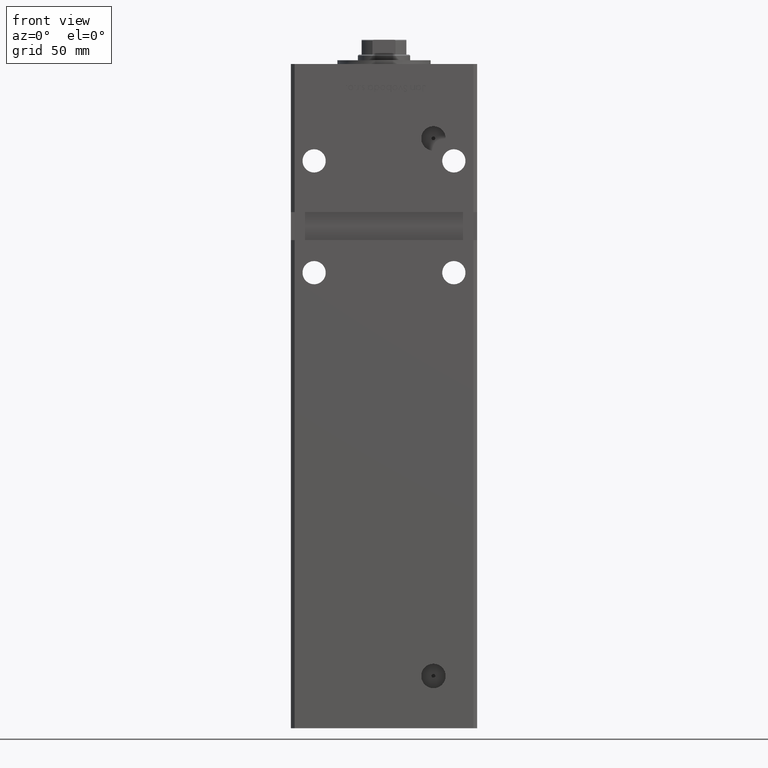
[diagram: clean part render]
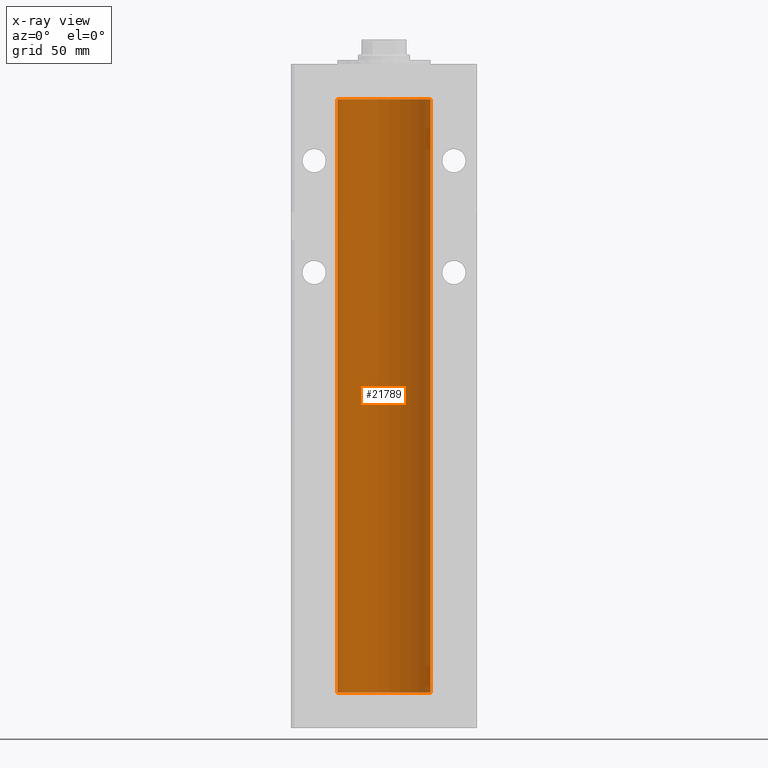
[diagram: x-ray — body ghosted, one internal face saturated and labeled with its STEP entity id]
A machine part, front view, then the same camera in x-ray: the body is ghosted and one INTERNAL B-rep face — a face not visible from any outside direction — is saturated and labeled: STEP entity #21789.
In plain terms, the highlighted cylindrical surface (partial cylindrical patch) has radius 25 mm, axis along (-0, -0, -1).
Its self-contained STEP definition (entity closure, byte-faithful):
#387 = CIRCLE ( 'NONE', #45842, 25.00000000000000000 ) ;
#1282 = DIRECTION ( 'NONE',  ( 1.000000000000000000, 0.000000000000000000, 0.000000000000000000 ) ) ;
#2085 = CIRCLE ( 'NONE', #6348, 25.00000000000000000 ) ;
#3103 = VERTEX_POINT ( 'NONE', #39651 ) ;
#5328 = CARTESIAN_POINT ( 'NONE',  ( 0.000000000000000000, 0.000000000000000000, 0.000000000000000000 ) ) ;
#6348 = AXIS2_PLACEMENT_3D ( 'NONE', #27456, #14842, #22897 ) ;
#7158 = CARTESIAN_POINT ( 'NONE',  ( -25.00000000000000000, 0.000000000000000000, 0.000000000000000000 ) ) ;
#8181 = LINE ( 'NONE', #24549, #21159 ) ;
#8368 = CARTESIAN_POINT ( 'NONE',  ( 25.00000000000000000, 3.061616997868383043E-15, 0.000000000000000000 ) ) ;
#11287 = LINE ( 'NONE', #15841, #34707 ) ;
#11823 = EDGE_CURVE ( 'NONE', #3103, #28833, #2085, .T. ) ;
#12466 = EDGE_CURVE ( 'NONE', #3103, #41007, #11287, .T. ) ;
#13126 = EDGE_CURVE ( 'NONE', #41007, #34138, #387, .T. ) ;
#14842 = DIRECTION ( 'NONE',  ( -0.000000000000000000, 0.000000000000000000, 1.000000000000000000 ) ) ;
#15841 = CARTESIAN_POINT ( 'NONE',  ( 25.00000000000000000, 3.061616997868383043E-15, 318.5000000000000000 ) ) ;
#19867 = EDGE_CURVE ( 'NONE', #28833, #34138, #8181, .T. ) ;
#20404 = AXIS2_PLACEMENT_3D ( 'NONE', #46518, #41691, #29573 ) ;
#21159 = VECTOR ( 'NONE', #40952, 1000.000000000000000 ) ;
#21789 = ADVANCED_FACE ( 'NONE', ( #37914 ), #34686, .F. ) ;
#22897 = DIRECTION ( 'NONE',  ( 1.000000000000000000, 0.000000000000000000, 0.000000000000000000 ) ) ;
#24549 = CARTESIAN_POINT ( 'NONE',  ( -25.00000000000000000, 0.000000000000000000, 318.5000000000000000 ) ) ;
#27456 = CARTESIAN_POINT ( 'NONE',  ( 0.000000000000000000, 0.000000000000000000, 318.5000000000000000 ) ) ;
#28833 = VERTEX_POINT ( 'NONE', #35650 ) ;
#29354 = EDGE_LOOP ( 'NONE', ( #35601, #50693, #34726, #39929 ) ) ;
#29573 = DIRECTION ( 'NONE',  ( -1.000000000000000000, 0.000000000000000000, 0.000000000000000000 ) ) ;
#31947 = DIRECTION ( 'NONE',  ( -0.000000000000000000, -0.000000000000000000, -1.000000000000000000 ) ) ;
#34138 = VERTEX_POINT ( 'NONE', #7158 ) ;
#34686 = CYLINDRICAL_SURFACE ( 'NONE', #20404, 25.00000000000000000 ) ;
#34707 = VECTOR ( 'NONE', #31947, 1000.000000000000000 ) ;
#34726 = ORIENTED_EDGE ( 'NONE', *, *, #19867, .T. ) ;
#35601 = ORIENTED_EDGE ( 'NONE', *, *, #12466, .F. ) ;
#35650 = CARTESIAN_POINT ( 'NONE',  ( -25.00000000000000000, 0.000000000000000000, 318.5000000000000000 ) ) ;
#37914 = FACE_OUTER_BOUND ( 'NONE', #29354, .T. ) ;
#39651 = CARTESIAN_POINT ( 'NONE',  ( 25.00000000000000000, 3.061616997868383043E-15, 318.5000000000000000 ) ) ;
#39929 = ORIENTED_EDGE ( 'NONE', *, *, #13126, .F. ) ;
#40952 = DIRECTION ( 'NONE',  ( -0.000000000000000000, -0.000000000000000000, -1.000000000000000000 ) ) ;
#41007 = VERTEX_POINT ( 'NONE', #8368 ) ;
#41606 = DIRECTION ( 'NONE',  ( -0.000000000000000000, 0.000000000000000000, 1.000000000000000000 ) ) ;
#41691 = DIRECTION ( 'NONE',  ( -0.000000000000000000, -0.000000000000000000, -1.000000000000000000 ) ) ;
#45842 = AXIS2_PLACEMENT_3D ( 'NONE', #5328, #41606, #1282 ) ;
#46518 = CARTESIAN_POINT ( 'NONE',  ( 0.000000000000000000, 0.000000000000000000, 318.5000000000000000 ) ) ;
#50693 = ORIENTED_EDGE ( 'NONE', *, *, #11823, .T. ) ;